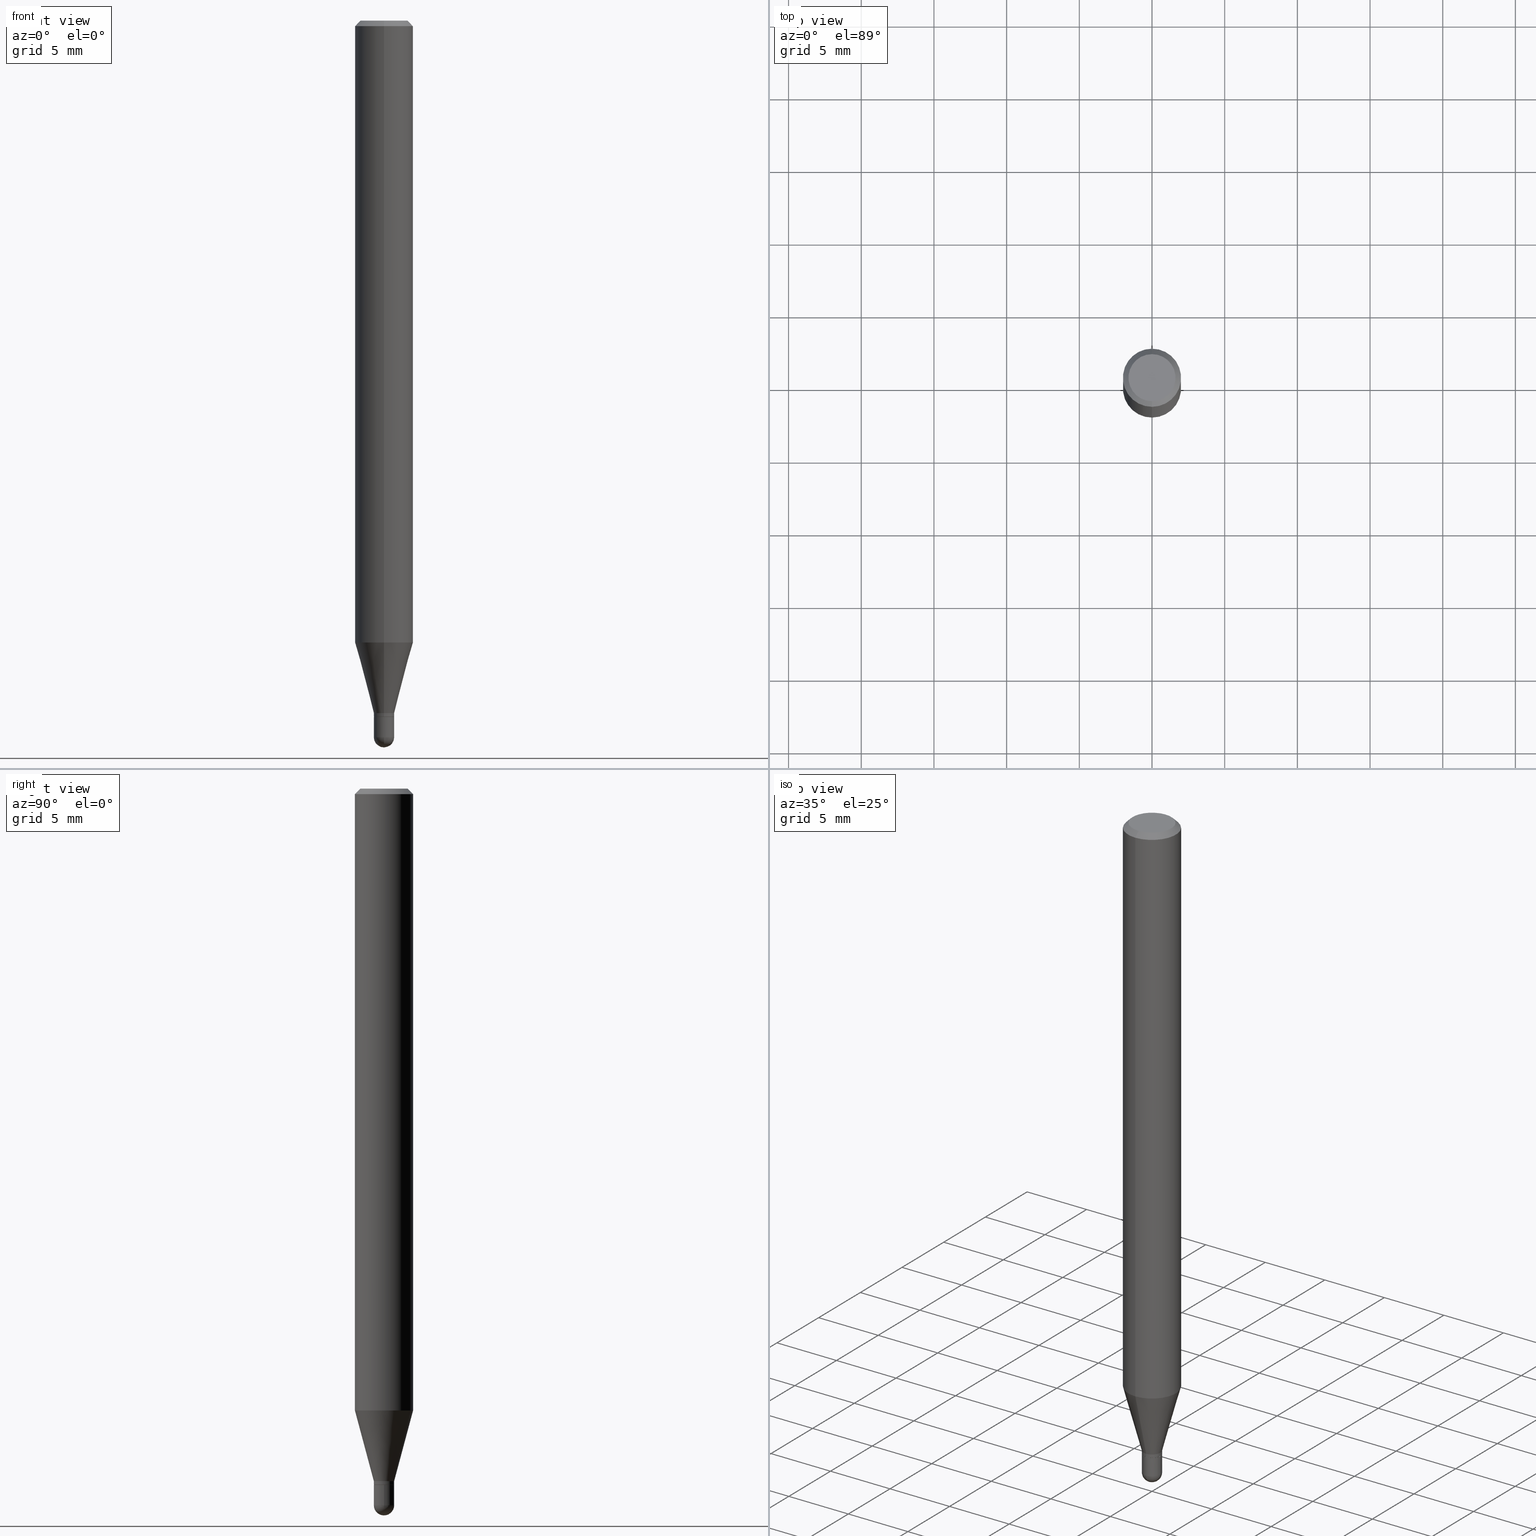
[diagram: canonical four-view strip — front | top / right | iso, engineering-drawing reading convention]
A machine part, canonical four-view strip (front | top / right | iso — engineering-drawing reading convention). The complete STEP part file that produces these views, byte-faithful:
ISO-10303-21;
HEADER;
FILE_DESCRIPTION (( 'STEP AP203' ),
    '1' );
FILE_NAME ('02013.STEP',
    '2024-03-07T19:55:02',
    ( '' ),
    ( '' ),
    'SwSTEP 2.0',
    'SolidWorks 2023',
    '' );
FILE_SCHEMA (( 'CONFIG_CONTROL_DESIGN' ));
ENDSEC;

DATA;
#1 = DIRECTION ( 'NONE',  ( 1.000000000000000000, -6.982962677686265922E-15, 4.876176775795935793E-29 ) ) ;
#2 = CARTESIAN_POINT ( 'NONE',  ( 4.746532679365040693E-29, -6.776790704627602522E-15, -1.940949999999999953 ) ) ;
#3 = AXIS2_PLACEMENT_3D ( 'NONE', #400, #511, #113 ) ;
#4 = CYLINDRICAL_SURFACE ( 'NONE', #354, 0.02754999999999992524 ) ;
#5 = ORIENTED_EDGE ( 'NONE', *, *, #299, .T. ) ;
#6 = DIRECTION ( 'NONE',  ( -4.937700262164674260E-15, -0.7071067811865632269, 0.7071067811865319186 ) ) ;
#7 = ORIENTED_EDGE ( 'NONE', *, *, #243, .F. ) ;
#8 = DATE_AND_TIME ( #78, #42 ) ;
#9 = DIRECTION ( 'NONE',  ( -1.000000000000000000, 6.982962677686265922E-15, -4.883557194083112901E-29 ) ) ;
#10 = CIRCLE ( 'NONE', #41, 0.02705000000000000113 ) ;
#11 = APPROVAL_PERSON_ORGANIZATION ( #336, #80, #124 ) ;
#12 = DIRECTION ( 'NONE',  ( -2.445468806185136597E-29, 3.491481338843145583E-15, 1.000000000000000000 ) ) ;
#13 = EDGE_CURVE ( 'NONE', #143, #509, #353, .T. ) ;
#14 = DATE_AND_TIME ( #332, #86 ) ;
#15 = DIRECTION ( 'NONE',  ( 1.000000000000000000, -6.982962677686265922E-15, 4.883557194083112340E-29 ) ) ;
#16 = PERSON_AND_ORGANIZATION_ROLE ( 'creator' ) ;
#17 = CARTESIAN_POINT ( 'NONE',  ( 4.812727353412096861E-29, -6.874667966478556981E-15, -1.968499999999999694 ) ) ;
#18 = COORDINATED_UNIVERSAL_TIME_OFFSET ( 5, 0, .BEHIND. ) ;
#19 = AXIS2_PLACEMENT_3D ( 'NONE', #333, #9, #250 ) ;
#20 = CIRCLE ( 'NONE', #197, 0.02754999999999992524 ) ;
#21 = DIRECTION ( 'NONE',  ( 1.839019923739601893E-15, 0.2588190451025252359, 0.9659258262890670910 ) ) ;
#22 = CC_DESIGN_PERSON_AND_ORGANIZATION_ASSIGNMENT ( #217, #446, ( #103 ) ) ;
#23 = DIRECTION ( 'NONE',  ( -2.445460784129690080E-29, 3.491492826883132215E-15, 1.000000000000000000 ) ) ;
#24 = LINE ( 'NONE', #57, #370 ) ;
#25 = ADVANCED_FACE ( 'NONE', ( #278 ), #151, .F. ) ;
#26 = EDGE_LOOP ( 'NONE', ( #435, #352, #384, #405 ) ) ;
#27 = CARTESIAN_POINT ( 'NONE',  ( 5.595524044110787031E-16, 0.07875000000000000056, -2.749550601170466323E-16 ) ) ;
#28 = CC_DESIGN_PERSON_AND_ORGANIZATION_ASSIGNMENT ( #377, #16, ( #301 ) ) ;
#29 = VECTOR ( 'NONE', #455, 39.37007874015748143 ) ;
#30 = CARTESIAN_POINT ( 'NONE',  ( 4.746532679365040693E-29, -6.776790704627602522E-15, -1.940949999999999953 ) ) ;
#31 = ORIENTED_EDGE ( 'NONE', *, *, #94, .T. ) ;
#32 = CARTESIAN_POINT ( 'NONE',  ( 4.611649946711769601E-29, -6.584257172936211229E-15, -1.885800000000000143 ) ) ;
#33 = CONICAL_SURFACE ( 'NONE', #238, 0.02754999999999992524, 0.2617993877991505181 ) ;
#34 = EDGE_CURVE ( 'NONE', #147, #267, #402, .T. ) ;
#35 = CARTESIAN_POINT ( 'NONE',  ( 0.000000000000000000, 0.000000000000000000, 0.000000000000000000 ) ) ;
#36 = ORIENTED_EDGE ( 'NONE', *, *, #285, .T. ) ;
#37 = DIRECTION ( 'NONE',  ( -2.445460784129690080E-29, 3.491492826883132215E-15, 1.000000000000000000 ) ) ;
#38 = EDGE_LOOP ( 'NONE', ( #281, #108, #391, #437 ) ) ;
#39 = LINE ( 'NONE', #156, #439 ) ;
#40 = ORIENTED_EDGE ( 'NONE', *, *, #65, .T. ) ;
#41 = AXIS2_PLACEMENT_3D ( 'NONE', #162, #218, #494 ) ;
#42 = LOCAL_TIME ( 14, 55, 2.000000000000000000, #128 ) ;
#43 = CARTESIAN_POINT ( 'NONE',  ( 3.668191176194477650E-31, -5.237239240324616847E-17, -0.01499999999999976526 ) ) ;
#44 = ORIENTED_EDGE ( 'NONE', *, *, #94, .F. ) ;
#45 = ORIENTED_EDGE ( 'NONE', *, *, #34, .T. ) ;
#46 = CALENDAR_DATE ( 2024, 7, 3 ) ;
#47 = FACE_OUTER_BOUND ( 'NONE', #404, .T. ) ;
#48 = AXIS2_PLACEMENT_3D ( 'NONE', #363, #150, #111 ) ;
#49 = LINE ( 'NONE', #416, #345 ) ;
#50 = MECHANICAL_CONTEXT ( 'NONE', #209, 'mechanical' ) ;
#51 = DIRECTION ( 'NONE',  ( -2.445460784129690080E-29, 3.491492826883132215E-15, 1.000000000000000000 ) ) ;
#52 = CYLINDRICAL_SURFACE ( 'NONE', #387, 0.02754999999999992524 ) ;
#53 = EDGE_CURVE ( 'NONE', #456, #147, #264, .T. ) ;
#54 = AXIS2_PLACEMENT_3D ( 'NONE', #30, #495, #97 ) ;
#55 = CARTESIAN_POINT ( 'NONE',  ( -1.923806217702102502E-16, -0.02755000000000647556, -1.875499999999999723 ) ) ;
#56 = ADVANCED_FACE ( 'NONE', ( #123 ), #445, .T. ) ;
#57 = CARTESIAN_POINT ( 'NONE',  ( -0.02755000000000000851, 1.957545237019076617E-16, -1.355166617365226740E-30 ) ) ;
#58 = DIRECTION ( 'NONE',  ( -6.982962677686264344E-15, -1.000000000000000000, 3.496114991891765576E-15 ) ) ;
#59 = LINE ( 'NONE', #266, #29 ) ;
#60 = ORIENTED_EDGE ( 'NONE', *, *, #382, .T. ) ;
#61 = CONICAL_SURFACE ( 'NONE', #274, 0.02705000000000000113, 0.7853981633974739252 ) ;
#62 = CARTESIAN_POINT ( 'NONE',  ( 4.451638707024993845E-16, 0.06375000000000000111, -1.050331595760533067E-16 ) ) ;
#63 = ORIENTED_EDGE ( 'NONE', *, *, #65, .F. ) ;
#64 = DIRECTION ( 'NONE',  ( 1.000000000000000000, -6.982962677686265922E-15, 4.876176775795935793E-29 ) ) ;
#65 = EDGE_CURVE ( 'NONE', #465, #506, #10, .T. ) ;
#66 = DIRECTION ( 'NONE',  ( -6.982962677686265922E-15, -1.000000000000000000, 0.000000000000000000 ) ) ;
#67 = EDGE_LOOP ( 'NONE', ( #315, #461, #368, #105 ) ) ;
#68 = AXIS2_PLACEMENT_3D ( 'NONE', #207, #371, #297 ) ;
#69 = AXIS2_PLACEMENT_3D ( 'NONE', #420, #349, #58 ) ;
#70 = DIRECTION ( 'NONE',  ( -6.982962677686265922E-15, -1.000000000000000000, 0.000000000000000000 ) ) ;
#71 = VERTEX_POINT ( 'NONE', #289 ) ;
#72 = CYLINDRICAL_SURFACE ( 'NONE', #219, 0.02755000000000000851 ) ;
#73 = ADVANCED_FACE ( 'NONE', ( #89 ), #52, .T. ) ;
#74 = ORIENTED_EDGE ( 'NONE', *, *, #127, .F. ) ;
#75 = CARTESIAN_POINT ( 'NONE',  ( -1.957545237018598616E-16, -0.02755000000000673924, -1.940949999999999953 ) ) ;
#76 = EDGE_LOOP ( 'NONE', ( #204, #195, #117, #269 ) ) ;
#77 = AXIS2_PLACEMENT_3D ( 'NONE', #290, #415, #369 ) ;
#78 = CALENDAR_DATE ( 2024, 7, 3 ) ;
#79 = VERTEX_POINT ( 'NONE', #410 ) ;
#80 = APPROVAL ( #165, 'UNSPECIFIED' ) ;
#81 = DIRECTION ( 'NONE',  ( -7.105427357601000281E-15, -1.000000000000000000, 0.000000000000000000 ) ) ;
#82 = SHAPE_DEFINITION_REPRESENTATION ( #322, #158 ) ;
#83 = CARTESIAN_POINT ( 'NONE',  ( -5.499083108677525221E-16, -0.07875000000000589861, -1.684418998652473354 ) ) ;
#84 = CIRCLE ( 'NONE', #226, 0.06375000000000000111 ) ;
#85 = CIRCLE ( 'NONE', #54, 0.02755000000000000851 ) ;
#86 = LOCAL_TIME ( 14, 55, 2.000000000000000000, #249 ) ;
#87 = CARTESIAN_POINT ( 'NONE',  ( 0.02755000000000000851, -6.872893728479260435E-15, -1.940949999999999953 ) ) ;
#88 = DATE_TIME_ROLE ( 'classification_date' ) ;
#89 = FACE_OUTER_BOUND ( 'NONE', #310, .T. ) ;
#90 = EDGE_CURVE ( 'NONE', #71, #313, #213, .T. ) ;
#91 = CONICAL_SURFACE ( 'NONE', #372, 0.07875000000000000056, 0.7853981633974483900 ) ;
#92 = CARTESIAN_POINT ( 'NONE',  ( -5.499083108677933457E-16, -0.07875000000000000056, 2.749550601170466323E-16 ) ) ;
#93 = ORIENTED_EDGE ( 'NONE', *, *, #236, .F. ) ;
#94 = EDGE_CURVE ( 'NONE', #98, #101, #417, .T. ) ;
#95 = DIRECTION ( 'NONE',  ( -2.445460784129690080E-29, 3.491492826883132609E-15, 1.000000000000000000 ) ) ;
#96 = ORIENTED_EDGE ( 'NONE', *, *, #330, .F. ) ;
#97 = DIRECTION ( 'NONE',  ( 1.000000000000000000, -6.982962677686254878E-15, 0.000000000000000000 ) ) ;
#98 = VERTEX_POINT ( 'NONE', #335 ) ;
#99 = FACE_OUTER_BOUND ( 'NONE', #401, .T. ) ;
#100 = VECTOR ( 'NONE', #257, 39.37007874015748143 ) ;
#101 = VERTEX_POINT ( 'NONE', #83 ) ;
#102 = CARTESIAN_POINT ( 'NONE',  ( -0.02755000000000000851, -6.484758583007096301E-15, -1.940949999999999953 ) ) ;
#103 = PRODUCT_DEFINITION ( 'UNKNOWN', '', #301, #178 ) ;
#104 = FACE_OUTER_BOUND ( 'NONE', #386, .T. ) ;
#105 = ORIENTED_EDGE ( 'NONE', *, *, #285, .F. ) ;
#106 = EDGE_CURVE ( 'NONE', #313, #231, #49, .T. ) ;
#107 = CARTESIAN_POINT ( 'NONE',  ( 0.000000000000000000, 0.000000000000000000, 0.000000000000000000 ) ) ;
#108 = ORIENTED_EDGE ( 'NONE', *, *, #127, .T. ) ;
#109 = AXIS2_PLACEMENT_3D ( 'NONE', #62, #181, #314 ) ;
#110 = CC_DESIGN_DATE_AND_TIME_ASSIGNMENT ( #327, #407, ( #103 ) ) ;
#111 = DIRECTION ( 'NONE',  ( -1.000000000000000000, 6.982962677686265922E-15, -4.876176775795935793E-29 ) ) ;
#112 = VERTEX_POINT ( 'NONE', #482 ) ;
#113 = DIRECTION ( 'NONE',  ( 1.000000000000000000, -6.982962677686256455E-15, 0.000000000000000000 ) ) ;
#114 = ORIENTED_EDGE ( 'NONE', *, *, #133, .T. ) ;
#115 = MANIFOLD_SOLID_BREP ( 'Body-Move/Copy2[1]', #300 ) ;
#116 = DIRECTION ( 'NONE',  ( 6.982962677686264344E-15, 1.000000000000000000, -3.496114991891765576E-15 ) ) ;
#117 = ORIENTED_EDGE ( 'NONE', *, *, #355, .F. ) ;
#118 = AXIS2_PLACEMENT_3D ( 'NONE', #125, #447, #167 ) ;
#119 = PERSON_AND_ORGANIZATION_ROLE ( 'design_supplier' ) ;
#120 = MANIFOLD_SOLID_BREP ( 'Body-Move/Copy2[2]', #194 ) ;
#121 = DIRECTION ( 'NONE',  ( 4.937700262164548042E-15, 0.7071067811865451302, -0.7071067811865499042 ) ) ;
#122 = CALENDAR_DATE ( 2024, 7, 3 ) ;
#123 = FACE_OUTER_BOUND ( 'NONE', #38, .T. ) ;
#124 = APPROVAL_ROLE ( '' ) ;
#125 = CARTESIAN_POINT ( 'NONE',  ( 4.746532679365040693E-29, -6.776790704627602522E-15, -1.940949999999999953 ) ) ;
#126 = AXIS2_PLACEMENT_3D ( 'NONE', #450, #295, #164 ) ;
#127 = EDGE_CURVE ( 'NONE', #200, #267, #409, .T. ) ;
#128 = COORDINATED_UNIVERSAL_TIME_OFFSET ( 5, 0, .BEHIND. ) ;
#129 = DIRECTION ( 'NONE',  ( 5.024295867788190974E-15, 0.7071067811865681119, 0.7071067811865270336 ) ) ;
#130 = UNCERTAINTY_MEASURE_WITH_UNIT (LENGTH_MEASURE( 1.000000000000000082E-05 ), #251, 'distance_accuracy_value', 'NONE');
#131 = PERSON_AND_ORGANIZATION_ROLE ( 'design_owner' ) ;
#132 = CARTESIAN_POINT ( 'NONE',  ( 1.957545237019070454E-16, 0.02754999999999992524, -9.619062738063003771E-17 ) ) ;
#133 = EDGE_CURVE ( 'NONE', #272, #456, #173, .T. ) ;
#134 = DIRECTION ( 'NONE',  ( -6.982962677686266711E-15, -1.000000000000000000, 0.000000000000000000 ) ) ;
#135 = PRODUCT_RELATED_PRODUCT_CATEGORY ( 'detail', '', ( #316 ) ) ;
#136 = ORIENTED_EDGE ( 'NONE', *, *, #201, .F. ) ;
#137 = AXIS2_PLACEMENT_3D ( 'NONE', #306, #505, #343 ) ;
#138 = DIRECTION ( 'NONE',  ( -2.445460784129690080E-29, 3.491492826883132215E-15, 1.000000000000000000 ) ) ;
#139 = CC_DESIGN_SECURITY_CLASSIFICATION ( #198, ( #301 ) ) ;
#140 = DIRECTION ( 'NONE',  ( -2.445460784129690080E-29, 3.491492826883132215E-15, 1.000000000000000000 ) ) ;
#141 = ORIENTED_EDGE ( 'NONE', *, *, #106, .F. ) ;
#142 = DIRECTION ( 'NONE',  ( -2.445460784129690080E-29, 3.491492826883132609E-15, 1.000000000000000000 ) ) ;
#143 = VERTEX_POINT ( 'NONE', #294 ) ;
#144 = ADVANCED_FACE ( 'NONE', ( #485 ), #492, .T. ) ;
#145 = CARTESIAN_POINT ( 'NONE',  ( -5.749254246891852825E-45, 8.208465289331636432E-31, 2.350990162754927736E-16 ) ) ;
#146 = VECTOR ( 'NONE', #121, 39.37007874015748143 ) ;
#147 = VERTEX_POINT ( 'NONE', #87 ) ;
#148 = CARTESIAN_POINT ( 'NONE',  ( 1.939781668625531636E-16, 0.02704999999999341612, -1.885800000000000143 ) ) ;
#149 = ORIENTED_EDGE ( 'NONE', *, *, #106, .T. ) ;
#150 = DIRECTION ( 'NONE',  ( 2.438088387897960049E-29, -3.491481338843145188E-15, -1.000000000000000000 ) ) ;
#151 = PLANE ( 'NONE',  #364 ) ;
#152 = EDGE_CURVE ( 'NONE', #469, #467, #255, .T. ) ;
#153 = DIRECTION ( 'NONE',  ( 2.445460784129690080E-29, -3.491492826883132215E-15, -1.000000000000000000 ) ) ;
#154 = ORIENTED_EDGE ( 'NONE', *, *, #280, .F. ) ;
#155 = AXIS2_PLACEMENT_3D ( 'NONE', #457, #421, #426 ) ;
#156 = CARTESIAN_POINT ( 'NONE',  ( -5.402642173245076924E-16, -0.07875000000000004219, -0.01499999999999948944 ) ) ;
#157 = ORIENTED_EDGE ( 'NONE', *, *, #398, .F. ) ;
#158 = ADVANCED_BREP_SHAPE_REPRESENTATION ( '02013', ( #115, #120, #77 ), #246 ) ;
#159 = DIRECTION ( 'NONE',  ( -4.851104656540964275E-15, -0.7071067811865500152, -0.7071067811865450192 ) ) ;
#160 = ORIENTED_EDGE ( 'NONE', *, *, #230, .F. ) ;
#161 = APPLICATION_PROTOCOL_DEFINITION ( 'international standard', 'config_control_design', 1994, #209 ) ;
#162 = CARTESIAN_POINT ( 'NONE',  ( 4.611649946711769601E-29, -6.584257172936211229E-15, -1.885800000000000143 ) ) ;
#163 = APPROVAL_ROLE ( '' ) ;
#164 = DIRECTION ( 'NONE',  ( 1.000000000000000000, -6.982962677686254878E-15, 0.000000000000000000 ) ) ;
#165 = APPROVAL_STATUS ( 'not_yet_approved' ) ;
#166 = CARTESIAN_POINT ( 'NONE',  ( 0.000000000000000000, 0.000000000000000000, 0.000000000000000000 ) ) ;
#167 = DIRECTION ( 'NONE',  ( 1.000000000000000000, -6.982962677686254878E-15, 0.000000000000000000 ) ) ;
#168 = PERSON_AND_ORGANIZATION ( #187, #185 ) ;
#169 = CARTESIAN_POINT ( 'NONE',  ( 4.744176696238351867E-29, -6.780164606559253859E-15, -1.940949999999999953 ) ) ;
#170 = CARTESIAN_POINT ( 'NONE',  ( 4.119180605247625477E-29, -5.881136851260779316E-15, -1.684418998652473798 ) ) ;
#171 = CARTESIAN_POINT ( 'NONE',  ( 1.923806217703038289E-16, 0.02754999999999318064, -1.940949999999999953 ) ) ;
#172 = ORIENTED_EDGE ( 'NONE', *, *, #234, .F. ) ;
#173 = CIRCLE ( 'NONE', #118, 0.02755000000000000851 ) ;
#174 = CIRCLE ( 'NONE', #418, 0.02754999999999992524 ) ;
#175 = LINE ( 'NONE', #92, #395 ) ;
#176 = ORIENTED_EDGE ( 'NONE', *, *, #325, .F. ) ;
#177 = LINE ( 'NONE', #460, #208 ) ;
#178 = DESIGN_CONTEXT ( 'detailed design', #510, 'design' ) ;
#179 = ORIENTED_EDGE ( 'NONE', *, *, #236, .T. ) ;
#180 = APPROVAL ( #375, 'UNSPECIFIED' ) ;
#181 = DIRECTION ( 'NONE',  ( 2.445460784129689239E-29, -3.491492826883132609E-15, -1.000000000000000000 ) ) ;
#182 = ORIENTED_EDGE ( 'NONE', *, *, #133, .F. ) ;
#183 = EDGE_CURVE ( 'NONE', #71, #441, #259, .T. ) ;
#184 = AXIS2_PLACEMENT_3D ( 'NONE', #396, #190, #359 ) ;
#185 = ORGANIZATION ( 'UNSPECIFIED', 'UNSPECIFIED', '' ) ;
#186 = ORIENTED_EDGE ( 'NONE', *, *, #90, .F. ) ;
#187 = PERSON ( 'UNSPECIFIED', 'UNSPECIFIED', 'UNSPECIFIED', ('UNSPECIFIED'), ('UNSPECIFIED'), ('UNSPECIFIED') ) ;
#188 = CARTESIAN_POINT ( 'NONE',  ( 4.611649946711769601E-29, -6.584257172936211229E-15, -1.885800000000000143 ) ) ;
#189 = CC_DESIGN_PERSON_AND_ORGANIZATION_ASSIGNMENT ( #373, #449, ( #198 ) ) ;
#190 = DIRECTION ( 'NONE',  ( -2.445468806185136597E-29, 3.491481338843145583E-15, 1.000000000000000000 ) ) ;
#191 = CARTESIAN_POINT ( 'NONE',  ( 4.586461700635232727E-29, -6.548294796819313301E-15, -1.875499999999999723 ) ) ;
#192 = DIRECTION ( 'NONE',  ( -2.445460784129689239E-29, 3.491492826883132609E-15, 1.000000000000000000 ) ) ;
#193 = PLANE ( 'NONE',  #48 ) ;
#194 = CLOSED_SHELL ( 'NONE', ( #459, #312, #502, #270, #499, #477, #214, #339, #342, #25, #362, #73 ) ) ;
#195 = ORIENTED_EDGE ( 'NONE', *, *, #201, .T. ) ;
#196 = CONICAL_SURFACE ( 'NONE', #491, 0.07875000000000000056, 0.7853981633974483900 ) ;
#197 = AXIS2_PLACEMENT_3D ( 'NONE', #367, #37, #476 ) ;
#198 = SECURITY_CLASSIFICATION ( '', '', #293 ) ;
#199 = CARTESIAN_POINT ( 'NONE',  ( -1.888891404313673910E-16, -0.02705000000000658961, -1.885800000000000143 ) ) ;
#200 = VERTEX_POINT ( 'NONE', #17 ) ;
#201 = EDGE_CURVE ( 'NONE', #465, #71, #378, .T. ) ;
#202 = DIMENSIONAL_EXPONENTS ( 1.000000000000000000, 0.000000000000000000, 0.000000000000000000, 0.000000000000000000, 0.000000000000000000, 0.000000000000000000, 0.000000000000000000 ) ;
#203 = PERSON_AND_ORGANIZATION ( #187, #185 ) ;
#204 = ORIENTED_EDGE ( 'NONE', *, *, #287, .T. ) ;
#205 = PERSON_AND_ORGANIZATION ( #187, #185 ) ;
#206 = EDGE_CURVE ( 'NONE', #200, #456, #498, .T. ) ;
#207 = CARTESIAN_POINT ( 'NONE',  ( 0.000000000000000000, 0.000000000000000000, 0.000000000000000000 ) ) ;
#208 = VECTOR ( 'NONE', #308, 39.37007874015748143 ) ;
#209 = APPLICATION_CONTEXT ( 'configuration controlled 3d designs of mechanical parts and assemblies' ) ;
#210 = CIRCLE ( 'NONE', #319, 0.02705000000000000113 ) ;
#211 = APPROVAL_PERSON_ORGANIZATION ( #205, #221, #163 ) ;
#212 = COORDINATED_UNIVERSAL_TIME_OFFSET ( 5, 0, .BEHIND. ) ;
#213 = LINE ( 'NONE', #132, #100 ) ;
#214 = ADVANCED_FACE ( 'NONE', ( #47 ), #408, .T. ) ;
#215 = CALENDAR_DATE ( 2024, 7, 3 ) ;
#216 = DIRECTION ( 'NONE',  ( -2.445460784129690080E-29, 3.491492826883132215E-15, 1.000000000000000000 ) ) ;
#217 = PERSON_AND_ORGANIZATION ( #187, #185 ) ;
#218 = DIRECTION ( 'NONE',  ( -2.445460784129690080E-29, 3.491492826883132215E-15, 1.000000000000000000 ) ) ;
#219 = AXIS2_PLACEMENT_3D ( 'NONE', #35, #472, #1 ) ;
#220 = FACE_OUTER_BOUND ( 'NONE', #26, .T. ) ;
#221 = APPROVAL ( #442, 'UNSPECIFIED' ) ;
#222 = FACE_OUTER_BOUND ( 'NONE', #429, .T. ) ;
#223 = EDGE_LOOP ( 'NONE', ( #141, #425, #31, #422 ) ) ;
#224 = DIRECTION ( 'NONE',  ( -2.445460784129690080E-29, 3.491492826883132215E-15, 1.000000000000000000 ) ) ;
#225 = ORIENTED_EDGE ( 'NONE', *, *, #296, .T. ) ;
#226 = AXIS2_PLACEMENT_3D ( 'NONE', #145, #138, #262 ) ;
#227 = AXIS2_PLACEMENT_3D ( 'NONE', #170, #261, #268 ) ;
#228 = DIRECTION ( 'NONE',  ( -6.982962677686265922E-15, -1.000000000000000000, 0.000000000000000000 ) ) ;
#229 = LOCAL_TIME ( 14, 55, 2.000000000000000000, #484 ) ;
#230 = EDGE_CURVE ( 'NONE', #272, #143, #24, .T. ) ;
#231 = VERTEX_POINT ( 'NONE', #497 ) ;
#232 = DIRECTION ( 'NONE',  ( -6.982962677686266711E-15, -1.000000000000000000, 0.000000000000000000 ) ) ;
#233 = ORIENTED_EDGE ( 'NONE', *, *, #303, .T. ) ;
#234 = EDGE_CURVE ( 'NONE', #467, #112, #394, .T. ) ;
#235 =( LENGTH_UNIT ( ) NAMED_UNIT ( * ) SI_UNIT ( $, .METRE. ) );
#236 = EDGE_CURVE ( 'NONE', #147, #509, #177, .T. ) ;
#237 = CARTESIAN_POINT ( 'NONE',  ( 0.02755000000000000157, -6.776616130560660766E-15, -1.885800000000000143 ) ) ;
#238 = AXIS2_PLACEMENT_3D ( 'NONE', #191, #360, #66 ) ;
#239 = ORIENTED_EDGE ( 'NONE', *, *, #183, .F. ) ;
#240 = CARTESIAN_POINT ( 'NONE',  ( -1.923806217702106693E-16, -0.02755000000000660740, -1.885300000000000198 ) ) ;
#241 = ORIENTED_EDGE ( 'NONE', *, *, #483, .F. ) ;
#242 = ORIENTED_EDGE ( 'NONE', *, *, #325, .T. ) ;
#243 = EDGE_CURVE ( 'NONE', #231, #467, #464, .T. ) ;
#244 = FACE_OUTER_BOUND ( 'NONE', #223, .T. ) ;
#245 = ORIENTED_EDGE ( 'NONE', *, *, #398, .T. ) ;
#246 =( GEOMETRIC_REPRESENTATION_CONTEXT ( 3 ) GLOBAL_UNCERTAINTY_ASSIGNED_CONTEXT ( ( #130 ) ) GLOBAL_UNIT_ASSIGNED_CONTEXT ( ( #251, #489, #487 ) ) REPRESENTATION_CONTEXT ( 'NONE', 'WORKASPACE' ) );
#247 = LENGTH_MEASURE_WITH_UNIT ( LENGTH_MEASURE( 0.02539999999999999897 ), #235 );
#248 = EDGE_LOOP ( 'NONE', ( #74, #283, #182, #478 ) ) ;
#249 = COORDINATED_UNIVERSAL_TIME_OFFSET ( 5, 0, .BEHIND. ) ;
#250 = DIRECTION ( 'NONE',  ( 6.982962677686265922E-15, 1.000000000000000000, 0.000000000000000000 ) ) ;
#251 =( CONVERSION_BASED_UNIT ( 'INCH', #247 ) LENGTH_UNIT ( ) NAMED_UNIT ( #202 ) );
#252 = DIRECTION ( 'NONE',  ( 1.000000000000000000, -6.982962677686254878E-15, 0.000000000000000000 ) ) ;
#253 = AXIS2_PLACEMENT_3D ( 'NONE', #424, #140, #341 ) ;
#254 = APPROVAL_ROLE ( '' ) ;
#255 = LINE ( 'NONE', #329, #146 ) ;
#256 = CARTESIAN_POINT ( 'NONE',  ( 4.744176696238351867E-29, -6.780164606559253859E-15, -1.940949999999999953 ) ) ;
#257 = DIRECTION ( 'NONE',  ( -2.445460784129690080E-29, 3.491492826883132609E-15, 1.000000000000000000 ) ) ;
#258 = EDGE_CURVE ( 'NONE', #469, #79, #84, .T. ) ;
#259 = CIRCLE ( 'NONE', #470, 0.02754999999999992524 ) ;
#260 = CC_DESIGN_APPROVAL ( #80, ( #103 ) ) ;
#261 = DIRECTION ( 'NONE',  ( -2.445460784129690080E-29, 3.491492826883132215E-15, 1.000000000000000000 ) ) ;
#262 = DIRECTION ( 'NONE',  ( -6.982962677686264344E-15, -1.000000000000000000, 3.491492826883131820E-15 ) ) ;
#263 = PLANE ( 'NONE',  #109 ) ;
#264 = CIRCLE ( 'NONE', #126, 0.02755000000000000851 ) ;
#265 = AXIS2_PLACEMENT_3D ( 'NONE', #351, #347, #228 ) ;
#266 = CARTESIAN_POINT ( 'NONE',  ( -1.923806217702561028E-16, -0.02754999999999992524, 9.619062738063003771E-17 ) ) ;
#267 = VERTEX_POINT ( 'NONE', #171 ) ;
#268 = DIRECTION ( 'NONE',  ( -6.982962677686264344E-15, -1.000000000000000000, 3.469013325287953293E-15 ) ) ;
#269 = ORIENTED_EDGE ( 'NONE', *, *, #486, .F. ) ;
#270 = ADVANCED_FACE ( 'NONE', ( #99 ), #302, .T. ) ;
#271 = CYLINDRICAL_SURFACE ( 'NONE', #284, 0.02755000000000000851 ) ;
#272 = VERTEX_POINT ( 'NONE', #102 ) ;
#273 = CARTESIAN_POINT ( 'NONE',  ( 5.595524044111202169E-16, 0.07874999999999994504, -0.01500000000000004108 ) ) ;
#274 = AXIS2_PLACEMENT_3D ( 'NONE', #503, #224, #232 ) ;
#275 = CARTESIAN_POINT ( 'NONE',  ( 4.611649946711769601E-29, -6.584257172936211229E-15, -1.885800000000000143 ) ) ;
#276 = CC_DESIGN_APPROVAL ( #221, ( #198 ) ) ;
#277 = FACE_OUTER_BOUND ( 'NONE', #307, .T. ) ;
#278 = FACE_OUTER_BOUND ( 'NONE', #473, .T. ) ;
#279 = FACE_OUTER_BOUND ( 'NONE', #67, .T. ) ;
#280 = EDGE_CURVE ( 'NONE', #79, #469, #380, .T. ) ;
#281 = ORIENTED_EDGE ( 'NONE', *, *, #206, .F. ) ;
#282 = DIRECTION ( 'NONE',  ( -2.445468806185136597E-29, 3.491481338843145583E-15, 1.000000000000000000 ) ) ;
#283 = ORIENTED_EDGE ( 'NONE', *, *, #206, .T. ) ;
#284 = AXIS2_PLACEMENT_3D ( 'NONE', #428, #282, #64 ) ;
#285 = EDGE_CURVE ( 'NONE', #441, #98, #59, .T. ) ;
#286 = DIRECTION ( 'NONE',  ( -1.000000000000000000, 7.105427357601001070E-15, -4.926315508542082329E-29 ) ) ;
#287 = EDGE_CURVE ( 'NONE', #506, #465, #210, .T. ) ;
#288 = DATE_AND_TIME ( #122, #229 ) ;
#289 = CARTESIAN_POINT ( 'NONE',  ( 1.957545237019524788E-16, 0.02754999999999324656, -1.885300000000000198 ) ) ;
#290 = CARTESIAN_POINT ( 'NONE',  ( 0.000000000000000000, 0.000000000000000000, 0.000000000000000000 ) ) ;
#291 = CARTESIAN_POINT ( 'NONE',  ( 4.744176696238351867E-29, -6.780164606559253859E-15, -1.940949999999999953 ) ) ;
#292 = AXIS2_PLACEMENT_3D ( 'NONE', #188, #474, #358 ) ;
#293 = SECURITY_CLASSIFICATION_LEVEL ( 'unclassified' ) ;
#294 = CARTESIAN_POINT ( 'NONE',  ( -0.02755000000000000157, -6.484758583007096301E-15, -1.885800000000000143 ) ) ;
#295 = DIRECTION ( 'NONE',  ( -2.445468806185136597E-29, 3.491481338843145583E-15, 1.000000000000000000 ) ) ;
#296 = EDGE_CURVE ( 'NONE', #112, #467, #388, .T. ) ;
#297 = DIRECTION ( 'NONE',  ( -6.982962677686264344E-15, -1.000000000000000000, 3.491492826883131820E-15 ) ) ;
#298 = ORIENTED_EDGE ( 'NONE', *, *, #309, .T. ) ;
#299 = EDGE_CURVE ( 'NONE', #98, #313, #423, .T. ) ;
#300 = CLOSED_SHELL ( 'NONE', ( #508, #144, #431, #56, #414 ) ) ;
#301 = PRODUCT_DEFINITION_FORMATION_WITH_SPECIFIED_SOURCE ( 'ANY', '', #316, .NOT_KNOWN. ) ;
#302 = CYLINDRICAL_SURFACE ( 'NONE', #471, 0.07875000000000000056 ) ;
#303 = EDGE_CURVE ( 'NONE', #231, #101, #346, .T. ) ;
#304 = CARTESIAN_POINT ( 'NONE',  ( 3.776534640565365081E-16, 0.02754999999999337840, -1.875499999999999723 ) ) ;
#305 = EDGE_LOOP ( 'NONE', ( #160, #114, #323, #179, #366 ) ) ;
#306 = CARTESIAN_POINT ( 'NONE',  ( 3.668191176194477650E-31, -5.237239240324616847E-17, -0.01499999999999976526 ) ) ;
#307 = EDGE_LOOP ( 'NONE', ( #298, #326, #157, #93, #45 ) ) ;
#308 = DIRECTION ( 'NONE',  ( -2.445468806185136877E-29, 3.491481338843145188E-15, 1.000000000000000000 ) ) ;
#309 = EDGE_CURVE ( 'NONE', #267, #272, #85, .T. ) ;
#310 = EDGE_LOOP ( 'NONE', ( #186, #357, #36, #241 ) ) ;
#311 = CARTESIAN_POINT ( 'NONE',  ( 4.586461700635232727E-29, -6.548294796819313301E-15, -1.875499999999999723 ) ) ;
#312 = ADVANCED_FACE ( 'NONE', ( #452 ), #61, .T. ) ;
#313 = VERTEX_POINT ( 'NONE', #304 ) ;
#314 = DIRECTION ( 'NONE',  ( 6.982962677686265922E-15, 1.000000000000000000, -3.491492826883132609E-15 ) ) ;
#315 = ORIENTED_EDGE ( 'NONE', *, *, #355, .T. ) ;
#316 = PRODUCT ( '02013', '02013', '', ( #50 ) ) ;
#317 = CARTESIAN_POINT ( 'NONE',  ( -1.888891404313673910E-16, -0.02705000000000658961, -1.885800000000000143 ) ) ;
#318 = VECTOR ( 'NONE', #95, 39.37007874015748143 ) ;
#319 = AXIS2_PLACEMENT_3D ( 'NONE', #32, #23, #134 ) ;
#320 = ORIENTED_EDGE ( 'NONE', *, *, #330, .T. ) ;
#321 = FACE_OUTER_BOUND ( 'NONE', #475, .T. ) ;
#322 = PRODUCT_DEFINITION_SHAPE ( 'NONE', 'NONE',  #103 ) ;
#323 = ORIENTED_EDGE ( 'NONE', *, *, #53, .T. ) ;
#324 = DIRECTION ( 'NONE',  ( -2.445460784129690080E-29, 3.491492826883132215E-15, 1.000000000000000000 ) ) ;
#325 = EDGE_CURVE ( 'NONE', #101, #231, #411, .T. ) ;
#326 = ORIENTED_EDGE ( 'NONE', *, *, #230, .T. ) ;
#327 = DATE_AND_TIME ( #215, #331 ) ;
#328 = AXIS2_PLACEMENT_3D ( 'NONE', #169, #286, #81 ) ;
#329 = CARTESIAN_POINT ( 'NONE',  ( 5.499083108677937401E-16, 0.07874999999999994504, -0.01500000000000004108 ) ) ;
#330 = EDGE_CURVE ( 'NONE', #101, #112, #175, .T. ) ;
#331 = LOCAL_TIME ( 14, 55, 2.000000000000000000, #212 ) ;
#332 = CALENDAR_DATE ( 2024, 7, 3 ) ;
#333 = CARTESIAN_POINT ( 'NONE',  ( 4.744176696238351867E-29, -6.780164606559253859E-15, -1.940949999999999953 ) ) ;
#334 = DATE_AND_TIME ( #46, #481 ) ;
#335 = CARTESIAN_POINT ( 'NONE',  ( -1.923806217702102502E-16, -0.02755000000000647556, -1.875499999999999723 ) ) ;
#336 = PERSON_AND_ORGANIZATION ( #187, #185 ) ;
#337 = CARTESIAN_POINT ( 'NONE',  ( 1.922018100231532073E-16, 0.02704999999999341612, -1.885800000000000143 ) ) ;
#338 = CONICAL_SURFACE ( 'NONE', #292, 0.02705000000000000113, 0.7853981633974739252 ) ;
#339 = ADVANCED_FACE ( 'NONE', ( #220 ), #91, .T. ) ;
#340 = DIRECTION ( 'NONE',  ( -6.982962677686265922E-15, -1.000000000000000000, 3.491492826883132609E-15 ) ) ;
#341 = DIRECTION ( 'NONE',  ( -6.982962677686264344E-15, -1.000000000000000000, 3.491492826883131820E-15 ) ) ;
#342 = ADVANCED_FACE ( 'NONE', ( #222 ), #263, .F. ) ;
#343 = DIRECTION ( 'NONE',  ( -6.982962677686264344E-15, -1.000000000000000000, 3.496114991891765576E-15 ) ) ;
#344 = ORIENTED_EDGE ( 'NONE', *, *, #152, .F. ) ;
#345 = VECTOR ( 'NONE', #21, 39.37007874015748854 ) ;
#346 = CIRCLE ( 'NONE', #227, 0.07875000000000000056 ) ;
#347 = DIRECTION ( 'NONE',  ( -2.445460784129690080E-29, 3.491492826883132215E-15, 1.000000000000000000 ) ) ;
#348 = EDGE_LOOP ( 'NONE', ( #5, #149, #176, #44 ) ) ;
#349 = DIRECTION ( 'NONE',  ( -2.445460784129690080E-29, 3.491492826883132215E-15, 1.000000000000000000 ) ) ;
#350 = ORIENTED_EDGE ( 'NONE', *, *, #287, .F. ) ;
#351 = CARTESIAN_POINT ( 'NONE',  ( 4.586461700635232727E-29, -6.548294796819313301E-15, -1.875499999999999723 ) ) ;
#352 = ORIENTED_EDGE ( 'NONE', *, *, #258, .F. ) ;
#353 = CIRCLE ( 'NONE', #184, 0.02755000000000000157 ) ;
#354 = AXIS2_PLACEMENT_3D ( 'NONE', #107, #397, #436 ) ;
#355 = EDGE_CURVE ( 'NONE', #441, #71, #174, .T. ) ;
#356 = CARTESIAN_POINT ( 'NONE',  ( 4.610427216319704759E-29, -6.582511426522770042E-15, -1.885300000000000198 ) ) ;
#357 = ORIENTED_EDGE ( 'NONE', *, *, #183, .T. ) ;
#358 = DIRECTION ( 'NONE',  ( -6.982962677686266711E-15, -1.000000000000000000, 0.000000000000000000 ) ) ;
#359 = DIRECTION ( 'NONE',  ( 1.000000000000000000, -6.982962677686256455E-15, 0.000000000000000000 ) ) ;
#360 = DIRECTION ( 'NONE',  ( -2.445460784129690080E-29, 3.491492826883132215E-15, 1.000000000000000000 ) ) ;
#361 = DIRECTION ( 'NONE',  ( -6.982962677686265922E-15, -1.000000000000000000, 3.491492826883132609E-15 ) ) ;
#362 = ADVANCED_FACE ( 'NONE', ( #468 ), #338, .T. ) ;
#363 = CARTESIAN_POINT ( 'NONE',  ( 1.923806217703027935E-16, 0.02754999999999341656, -1.885800000000000143 ) ) ;
#364 = AXIS2_PLACEMENT_3D ( 'NONE', #275, #192, #361 ) ;
#365 = AXIS2_PLACEMENT_3D ( 'NONE', #311, #432, #403 ) ;
#366 = ORIENTED_EDGE ( 'NONE', *, *, #13, .F. ) ;
#367 = CARTESIAN_POINT ( 'NONE',  ( 4.586461700635232727E-29, -6.548294796819313301E-15, -1.875499999999999723 ) ) ;
#368 = ORIENTED_EDGE ( 'NONE', *, *, #299, .F. ) ;
#369 = DIRECTION ( 'NONE',  ( 1.000000000000000000, 0.000000000000000000, 0.000000000000000000 ) ) ;
#370 = VECTOR ( 'NONE', #383, 39.37007874015748143 ) ;
#371 = DIRECTION ( 'NONE',  ( -2.445460784129690080E-29, 3.491492826883132215E-15, 1.000000000000000000 ) ) ;
#372 = AXIS2_PLACEMENT_3D ( 'NONE', #419, #381, #501 ) ;
#373 = PERSON_AND_ORGANIZATION ( #187, #185 ) ;
#374 = DIRECTION ( 'NONE',  ( -1.000000000000000000, 6.982962677686265922E-15, -4.883557194083112901E-29 ) ) ;
#375 = APPROVAL_STATUS ( 'not_yet_approved' ) ;
#376 = DIRECTION ( 'NONE',  ( -6.982962677686265922E-15, -1.000000000000000000, 0.000000000000000000 ) ) ;
#377 = PERSON_AND_ORGANIZATION ( #187, #185 ) ;
#378 = LINE ( 'NONE', #337, #430 ) ;
#379 = AXIS2_PLACEMENT_3D ( 'NONE', #256, #374, #443 ) ;
#380 = CIRCLE ( 'NONE', #253, 0.06375000000000000111 ) ;
#381 = DIRECTION ( 'NONE',  ( 2.445460784129690080E-29, -3.491492826883132215E-15, -1.000000000000000000 ) ) ;
#382 = EDGE_CURVE ( 'NONE', #79, #112, #39, .T. ) ;
#383 = DIRECTION ( 'NONE',  ( -2.445468806185136877E-29, 3.491481338843145188E-15, 1.000000000000000000 ) ) ;
#384 = ORIENTED_EDGE ( 'NONE', *, *, #152, .T. ) ;
#385 = DIRECTION ( 'NONE',  ( -6.982962677686264344E-15, -1.000000000000000000, 3.491492826883131820E-15 ) ) ;
#386 = EDGE_LOOP ( 'NONE', ( #154, #60, #225, #344 ) ) ;
#387 = AXIS2_PLACEMENT_3D ( 'NONE', #166, #51, #340 ) ;
#388 = CIRCLE ( 'NONE', #69, 0.07875000000000000056 ) ;
#389 = CARTESIAN_POINT ( 'NONE',  ( 0.000000000000000000, 0.000000000000000000, 0.000000000000000000 ) ) ;
#390 = DIRECTION ( 'NONE',  ( -2.445460784129690080E-29, 3.491492826883132215E-15, 1.000000000000000000 ) ) ;
#391 = ORIENTED_EDGE ( 'NONE', *, *, #34, .F. ) ;
#392 = CC_DESIGN_PERSON_AND_ORGANIZATION_ASSIGNMENT ( #203, #131, ( #316 ) ) ;
#393 = LINE ( 'NONE', #199, #454 ) ;
#394 = CIRCLE ( 'NONE', #137, 0.07875000000000000056 ) ;
#395 = VECTOR ( 'NONE', #142, 39.37007874015748143 ) ;
#396 = CARTESIAN_POINT ( 'NONE',  ( 4.611665074703931259E-29, -6.584235508790404762E-15, -1.885800000000000143 ) ) ;
#397 = DIRECTION ( 'NONE',  ( -2.445460784129690080E-29, 3.491492826883132215E-15, 1.000000000000000000 ) ) ;
#398 = EDGE_CURVE ( 'NONE', #509, #143, #448, .T. ) ;
#399 = ORIENTED_EDGE ( 'NONE', *, *, #280, .T. ) ;
#400 = CARTESIAN_POINT ( 'NONE',  ( 4.611665074703931259E-29, -6.584235508790404762E-15, -1.885800000000000143 ) ) ;
#401 = EDGE_LOOP ( 'NONE', ( #242, #433, #504, #96 ) ) ;
#402 = CIRCLE ( 'NONE', #490, 0.02755000000000000851 ) ;
#403 = DIRECTION ( 'NONE',  ( -6.982962677686265922E-15, -1.000000000000000000, 0.000000000000000000 ) ) ;
#404 = EDGE_LOOP ( 'NONE', ( #7, #233, #320, #172 ) ) ;
#405 = ORIENTED_EDGE ( 'NONE', *, *, #234, .T. ) ;
#406 = CC_DESIGN_DATE_AND_TIME_ASSIGNMENT ( #14, #88, ( #198 ) ) ;
#407 = DATE_TIME_ROLE ( 'creation_date' ) ;
#408 = CYLINDRICAL_SURFACE ( 'NONE', #68, 0.07875000000000000056 ) ;
#409 = CIRCLE ( 'NONE', #479, 0.02754999999999991483 ) ;
#410 = CARTESIAN_POINT ( 'NONE',  ( -4.888104823412213911E-16, -0.06375000000000000111, 4.576816839892924424E-16 ) ) ;
#411 = CIRCLE ( 'NONE', #155, 0.07875000000000000056 ) ;
#412 = APPROVAL_DATE_TIME ( #8, #180 ) ;
#413 = CARTESIAN_POINT ( 'NONE',  ( 4.610427216319704759E-29, -6.582511426522770042E-15, -1.885300000000000198 ) ) ;
#414 = ADVANCED_FACE ( 'NONE', ( #507 ), #72, .T. ) ;
#415 = DIRECTION ( 'NONE',  ( 0.000000000000000000, 0.000000000000000000, 1.000000000000000000 ) ) ;
#416 = CARTESIAN_POINT ( 'NONE',  ( 1.957545237019528979E-16, 0.02754999999999337840, -1.875499999999999723 ) ) ;
#417 = LINE ( 'NONE', #55, #462 ) ;
#418 = AXIS2_PLACEMENT_3D ( 'NONE', #356, #324, #70 ) ;
#419 = CARTESIAN_POINT ( 'NONE',  ( 3.668191176194477650E-31, -5.237239240324616847E-17, -0.01499999999999976526 ) ) ;
#420 = CARTESIAN_POINT ( 'NONE',  ( 3.668191176194477650E-31, -5.237239240324616847E-17, -0.01499999999999976526 ) ) ;
#421 = DIRECTION ( 'NONE',  ( -2.445460784129690080E-29, 3.491492826883132215E-15, 1.000000000000000000 ) ) ;
#422 = ORIENTED_EDGE ( 'NONE', *, *, #303, .F. ) ;
#423 = CIRCLE ( 'NONE', #265, 0.02754999999999992524 ) ;
#424 = CARTESIAN_POINT ( 'NONE',  ( -5.749254246891852825E-45, 8.208465289331636432E-31, 2.350990162754927736E-16 ) ) ;
#425 = ORIENTED_EDGE ( 'NONE', *, *, #483, .T. ) ;
#426 = DIRECTION ( 'NONE',  ( -6.982962677686264344E-15, -1.000000000000000000, 3.469013325287953293E-15 ) ) ;
#427 = ORIENTED_EDGE ( 'NONE', *, *, #13, .T. ) ;
#428 = CARTESIAN_POINT ( 'NONE',  ( 0.000000000000000000, 0.000000000000000000, 0.000000000000000000 ) ) ;
#429 = EDGE_LOOP ( 'NONE', ( #458, #399 ) ) ;
#430 = VECTOR ( 'NONE', #129, 39.37007874015748143 ) ;
#431 = ADVANCED_FACE ( 'NONE', ( #321 ), #193, .F. ) ;
#432 = DIRECTION ( 'NONE',  ( -2.445460784129690080E-29, 3.491492826883132215E-15, 1.000000000000000000 ) ) ;
#433 = ORIENTED_EDGE ( 'NONE', *, *, #243, .T. ) ;
#434 = FACE_OUTER_BOUND ( 'NONE', #348, .T. ) ;
#435 = ORIENTED_EDGE ( 'NONE', *, *, #382, .F. ) ;
#436 = DIRECTION ( 'NONE',  ( -6.982962677686265922E-15, -1.000000000000000000, 3.491492826883132609E-15 ) ) ;
#437 = ORIENTED_EDGE ( 'NONE', *, *, #53, .F. ) ;
#438 = APPLICATION_PROTOCOL_DEFINITION ( 'international standard', 'config_control_design', 1994, #510 ) ;
#439 = VECTOR ( 'NONE', #159, 39.37007874015748143 ) ;
#440 = APPROVAL_PERSON_ORGANIZATION ( #168, #180, #254 ) ;
#441 = VERTEX_POINT ( 'NONE', #240 ) ;
#442 = APPROVAL_STATUS ( 'not_yet_approved' ) ;
#443 = DIRECTION ( 'NONE',  ( 6.982962677686265922E-15, 1.000000000000000000, 0.000000000000000000 ) ) ;
#444 = APPROVAL_DATE_TIME ( #288, #221 ) ;
#445 = SPHERICAL_SURFACE ( 'NONE', #379, 0.02754999999999991483 ) ;
#446 = PERSON_AND_ORGANIZATION_ROLE ( 'creator' ) ;
#447 = DIRECTION ( 'NONE',  ( -2.445468806185136597E-29, 3.491481338843145583E-15, 1.000000000000000000 ) ) ;
#448 = CIRCLE ( 'NONE', #3, 0.02755000000000000157 ) ;
#449 = PERSON_AND_ORGANIZATION_ROLE ( 'classification_officer' ) ;
#450 = CARTESIAN_POINT ( 'NONE',  ( 4.746532679365040693E-29, -6.776790704627602522E-15, -1.940949999999999953 ) ) ;
#451 = DIRECTION ( 'NONE',  ( -1.807323732225331717E-15, -0.2588190451025184080, 0.9659258262890689783 ) ) ;
#452 = FACE_OUTER_BOUND ( 'NONE', #76, .T. ) ;
#453 = EDGE_LOOP ( 'NONE', ( #136, #40, #512, #239 ) ) ;
#454 = VECTOR ( 'NONE', #6, 39.37007874015748143 ) ;
#455 = DIRECTION ( 'NONE',  ( -2.445460784129690080E-29, 3.491492826883132609E-15, 1.000000000000000000 ) ) ;
#456 = VERTEX_POINT ( 'NONE', #75 ) ;
#457 = CARTESIAN_POINT ( 'NONE',  ( 4.119180605247625477E-29, -5.881136851260779316E-15, -1.684418998652473798 ) ) ;
#458 = ORIENTED_EDGE ( 'NONE', *, *, #258, .T. ) ;
#459 = ADVANCED_FACE ( 'NONE', ( #279 ), #4, .T. ) ;
#460 = CARTESIAN_POINT ( 'NONE',  ( 0.02755000000000000851, -1.923806217702566944E-16, 1.343386701731780684E-30 ) ) ;
#461 = ORIENTED_EDGE ( 'NONE', *, *, #90, .T. ) ;
#462 = VECTOR ( 'NONE', #451, 39.37007874015748854 ) ;
#463 = CONICAL_SURFACE ( 'NONE', #365, 0.02754999999999992524, 0.2617993877991505181 ) ;
#464 = LINE ( 'NONE', #27, #318 ) ;
#465 = VERTEX_POINT ( 'NONE', #148 ) ;
#466 = CARTESIAN_POINT ( 'NONE',  ( 4.975360907851465623E-16, 0.06375000000000000111, 1.251634856169309859E-17 ) ) ;
#467 = VERTEX_POINT ( 'NONE', #273 ) ;
#468 = FACE_OUTER_BOUND ( 'NONE', #453, .T. ) ;
#469 = VERTEX_POINT ( 'NONE', #466 ) ;
#470 = AXIS2_PLACEMENT_3D ( 'NONE', #413, #216, #376 ) ;
#471 = AXIS2_PLACEMENT_3D ( 'NONE', #389, #390, #385 ) ;
#472 = DIRECTION ( 'NONE',  ( -2.445468806185136597E-29, 3.491481338843145583E-15, 1.000000000000000000 ) ) ;
#473 = EDGE_LOOP ( 'NONE', ( #350, #63 ) ) ;
#474 = DIRECTION ( 'NONE',  ( -2.445460784129690080E-29, 3.491492826883132215E-15, 1.000000000000000000 ) ) ;
#475 = EDGE_LOOP ( 'NONE', ( #245, #427 ) ) ;
#476 = DIRECTION ( 'NONE',  ( -6.982962677686265922E-15, -1.000000000000000000, 0.000000000000000000 ) ) ;
#477 = ADVANCED_FACE ( 'NONE', ( #244 ), #463, .T. ) ;
#478 = ORIENTED_EDGE ( 'NONE', *, *, #309, .F. ) ;
#479 = AXIS2_PLACEMENT_3D ( 'NONE', #291, #15, #488 ) ;
#480 = PERSON_AND_ORGANIZATION ( #187, #185 ) ;
#481 = LOCAL_TIME ( 14, 55, 2.000000000000000000, #18 ) ;
#482 = CARTESIAN_POINT ( 'NONE',  ( -5.499083108677930499E-16, -0.07875000000000004219, -0.01499999999999948944 ) ) ;
#483 = EDGE_CURVE ( 'NONE', #313, #98, #20, .T. ) ;
#484 = COORDINATED_UNIVERSAL_TIME_OFFSET ( 5, 0, .BEHIND. ) ;
#485 = FACE_OUTER_BOUND ( 'NONE', #248, .T. ) ;
#486 = EDGE_CURVE ( 'NONE', #506, #441, #393, .T. ) ;
#487 =( NAMED_UNIT ( * ) SI_UNIT ( $, .STERADIAN. ) SOLID_ANGLE_UNIT ( ) );
#488 = DIRECTION ( 'NONE',  ( 6.982962677686265922E-15, 1.000000000000000000, 0.000000000000000000 ) ) ;
#489 =( NAMED_UNIT ( * ) PLANE_ANGLE_UNIT ( ) SI_UNIT ( $, .RADIAN. ) );
#490 = AXIS2_PLACEMENT_3D ( 'NONE', #2, #12, #252 ) ;
#491 = AXIS2_PLACEMENT_3D ( 'NONE', #43, #153, #116 ) ;
#492 = SPHERICAL_SURFACE ( 'NONE', #19, 0.02754999999999991483 ) ;
#493 = APPROVAL_DATE_TIME ( #334, #80 ) ;
#494 = DIRECTION ( 'NONE',  ( -6.982962677686266711E-15, -1.000000000000000000, 0.000000000000000000 ) ) ;
#495 = DIRECTION ( 'NONE',  ( -2.445468806185136597E-29, 3.491481338843145583E-15, 1.000000000000000000 ) ) ;
#496 = CC_DESIGN_PERSON_AND_ORGANIZATION_ASSIGNMENT ( #480, #119, ( #301 ) ) ;
#497 = CARTESIAN_POINT ( 'NONE',  ( 5.595524044111199211E-16, 0.07874999999999410250, -1.684418998652474020 ) ) ;
#498 = CIRCLE ( 'NONE', #328, 0.02754999999999991483 ) ;
#499 = ADVANCED_FACE ( 'NONE', ( #434 ), #33, .T. ) ;
#500 = CC_DESIGN_APPROVAL ( #180, ( #301 ) ) ;
#501 = DIRECTION ( 'NONE',  ( 6.982962677686264344E-15, 1.000000000000000000, -3.496114991891765576E-15 ) ) ;
#502 = ADVANCED_FACE ( 'NONE', ( #104 ), #196, .T. ) ;
#503 = CARTESIAN_POINT ( 'NONE',  ( 4.611649946711769601E-29, -6.584257172936211229E-15, -1.885800000000000143 ) ) ;
#504 = ORIENTED_EDGE ( 'NONE', *, *, #296, .F. ) ;
#505 = DIRECTION ( 'NONE',  ( -2.445460784129690080E-29, 3.491492826883132215E-15, 1.000000000000000000 ) ) ;
#506 = VERTEX_POINT ( 'NONE', #317 ) ;
#507 = FACE_OUTER_BOUND ( 'NONE', #305, .T. ) ;
#508 = ADVANCED_FACE ( 'NONE', ( #277 ), #271, .T. ) ;
#509 = VERTEX_POINT ( 'NONE', #237 ) ;
#510 = APPLICATION_CONTEXT ( 'configuration controlled 3d designs of mechanical parts and assemblies' ) ;
#511 = DIRECTION ( 'NONE',  ( -2.445468806185136597E-29, 3.491481338843145583E-15, 1.000000000000000000 ) ) ;
#512 = ORIENTED_EDGE ( 'NONE', *, *, #486, .T. ) ;
ENDSEC;
END-ISO-10303-21;
